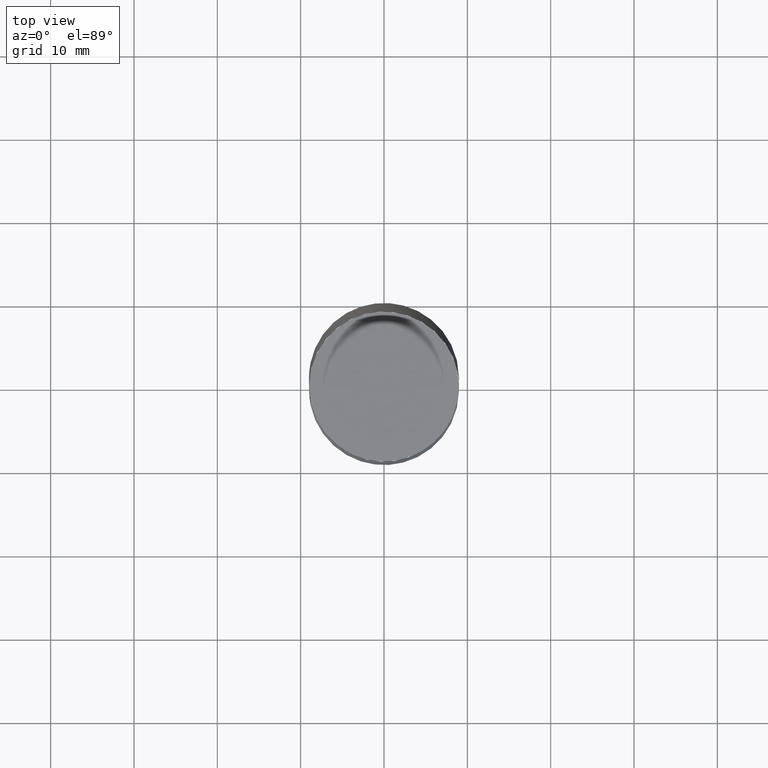
[diagram: clean part render]
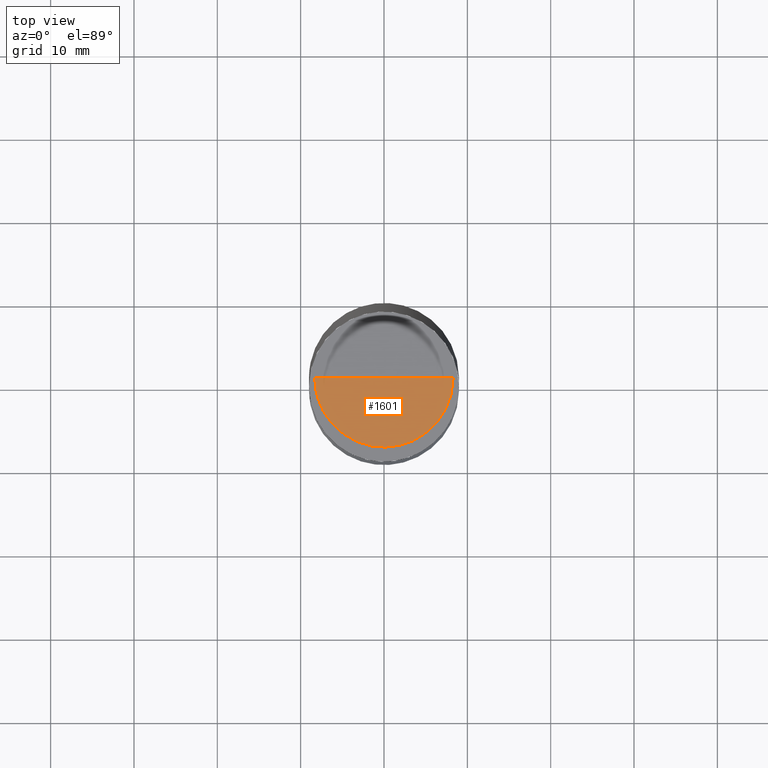
[diagram: same view with one face highlighted and labeled with its STEP entity id]
A machine part, top view. The second image highlights one B-rep face of the part: STEP entity #1601.
In plain terms, the highlighted face is a freeform B-spline surface patch.
Its self-contained STEP definition (entity closure, byte-faithful):
#1248=CARTESIAN_POINT('',(8.3,0.0,59.999));
#1252=CARTESIAN_POINT('',(-8.3,0.0,59.999));
#1253=CARTESIAN_POINT('',(0.0,0.0,59.999));
#1260=CARTESIAN_POINT('',(-8.3,-8.3,59.999));
#1261=CARTESIAN_POINT('',(0.0,-8.3,59.999));
#1262=CARTESIAN_POINT('',(8.3,-8.3,59.999));
#1586=(
BOUNDED_SURFACE()
B_SPLINE_SURFACE(1,2,(
(#1252,#1260,#1261,#1262,#1248),
(#1253,#1253,#1253,#1253,#1253)
), .UNSPECIFIED.,.F.,.F.,.F.)
B_SPLINE_SURFACE_WITH_KNOTS((2,2),(3,2,3),(
0.0,1.0),(
0.0,0.5,1.0), .UNSPECIFIED.)
GEOMETRIC_REPRESENTATION_ITEM()
RATIONAL_B_SPLINE_SURFACE(((1.0,0.707106781187,1.0,0.707106781187,1.0),
(1.0,0.707106781187,1.0,0.707106781187,1.0)
))
REPRESENTATION_ITEM('')
SURFACE()
);
#1587=(
BOUNDED_CURVE()
B_SPLINE_CURVE(1,(#1253,#1248),.UNSPECIFIED.,.F.,.F.)
B_SPLINE_CURVE_WITH_KNOTS((2,2),
(0.0,1.0),.UNSPECIFIED.)
CURVE()
GEOMETRIC_REPRESENTATION_ITEM()
RATIONAL_B_SPLINE_CURVE((1.0,1.0))
REPRESENTATION_ITEM('')
);
#1588=(
BOUNDED_CURVE()
B_SPLINE_CURVE(2,(#1248,#1262,#1261,#1260,#1252),.UNSPECIFIED.,.F.,.F.)
B_SPLINE_CURVE_WITH_KNOTS((3,2,3),
(0.0,0.5,1.0),.UNSPECIFIED.)
CURVE()
GEOMETRIC_REPRESENTATION_ITEM()
RATIONAL_B_SPLINE_CURVE((1.0,0.707106781187,1.0,0.707106781187,1.0))
REPRESENTATION_ITEM('')
);
#1589=(
BOUNDED_CURVE()
B_SPLINE_CURVE(1,(#1252,#1253),.UNSPECIFIED.,.F.,.F.)
B_SPLINE_CURVE_WITH_KNOTS((2,2),
(0.0,1.0),.UNSPECIFIED.)
CURVE()
GEOMETRIC_REPRESENTATION_ITEM()
RATIONAL_B_SPLINE_CURVE((1.0,1.0))
REPRESENTATION_ITEM('')
);
#1590=VERTEX_POINT('',#1248);
#1591=VERTEX_POINT('',#1252);
#1592=VERTEX_POINT('',#1253);
#1593=EDGE_CURVE('',#1592,#1590,#1587,.T.);
#1594=EDGE_CURVE('',#1590,#1591,#1588,.T.);
#1595=EDGE_CURVE('',#1591,#1592,#1589,.T.);
#1596=ORIENTED_EDGE('',*,*,#1593,.T.);
#1597=ORIENTED_EDGE('',*,*,#1594,.T.);
#1598=ORIENTED_EDGE('',*,*,#1595,.T.);
#1599=EDGE_LOOP('',(#1596,#1597,#1598));
#1600=FACE_OUTER_BOUND('',#1599,.T.);
#1601=ADVANCED_FACE('',(#1600),#1586,.T.);